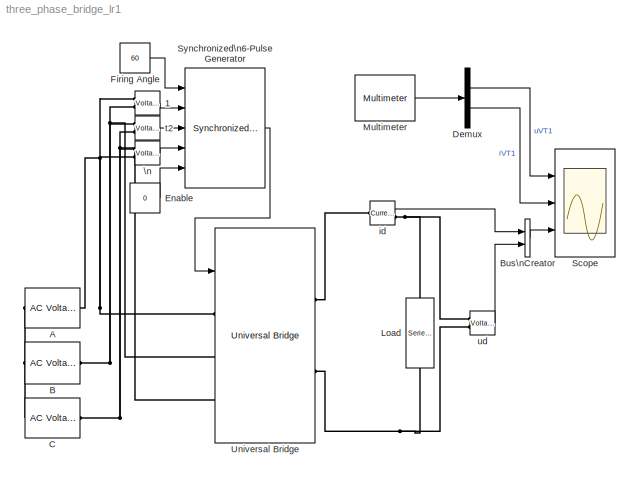
MODEL three_phase_bridge_lr1
KIND model
BLOCK [Reference]   \n  REF=powerlib/Measurements/Voltage Measurement
  OutputType = Complex
  PSBequivalent = 0
  PhasorSimulation = off
  Ports = [0, 1, 0, 0, 0, 2]
  ShowPortLabels = on
  SourceBlock = powerlib/Measurements/Voltage Measurement
  SourceType = Voltage Measurement
BLOCK [Reference] 1  REF=powerlib/Measurements/Voltage Measurement
  OutputType = Complex
  PSBequivalent = 0
  PhasorSimulation = off
  Ports = [0, 1, 0, 0, 0, 2]
  ShowPortLabels = on
  SourceBlock = powerlib/Measurements/Voltage Measurement
  SourceType = Voltage Measurement
BLOCK [Reference] A  REF=powerlib/Electrical\nSources/AC Voltage Source
  Amplitude = 100
  Frequency = 50
  Measurements = None
  Phase = 30
  Ports = [0, 0, 0, 0, 0, 1, 1]
  SampleTime = 0
  ShowPortLabels = on
  SourceBlock = powerlib/Electrical\nSources/AC Voltage Source
  SourceType = AC Voltage Source
BLOCK [Reference] B  REF=powerlib/Electrical\nSources/AC Voltage Source
  Amplitude = 100
  Frequency = 50
  Measurements = None
  Phase = -90
  Ports = [0, 0, 0, 0, 0, 1, 1]
  SampleTime = 0
  ShowPortLabels = on
  SourceBlock = powerlib/Electrical\nSources/AC Voltage Source
  SourceType = AC Voltage Source
BLOCK [BusCreator] Bus\nCreator
  DialogController = Simulink.DDGSource_Bus
  DisplayOption = bar
  Inputs = 2
  Ports = [2, 1]
BLOCK [Reference] C  REF=powerlib/Electrical\nSources/AC Voltage Source
  Amplitude = 100
  Frequency = 50
  Measurements = None
  Phase = -210
  Ports = [0, 0, 0, 0, 0, 1, 1]
  SampleTime = 0
  ShowPortLabels = on
  SourceBlock = powerlib/Electrical\nSources/AC Voltage Source
  SourceType = AC Voltage Source
BLOCK [Demux] Demux
  Outputs = 2
  Ports = [1, 2]
BLOCK [Constant] Enable
  Value = 0
BLOCK [Constant] Firing Angle
  Value = 60
BLOCK [Reference] Load  REF=powerlib/Elements/Series RLC Branch
  Capacitance = inf
  Inductance = 0.02
  LConnTagsString = __new0
  LeftPortType = p1
  Measurements = None
  PhysicalDomain = powersysdomain
  Ports = [0, 0, 0, 0, 0, 1, 1]
  RConnTagsString = __new0
  Resistance = 2
  RightPortType = p1
  SourceBlock = powerlib/Elements/Series RLC Branch
  SourceType = Series RLC Branch
  SubClassName = unknown
BLOCK [Reference] Multimeter  REF=powerlib/Measurements/Multimeter
  AttributesFormatString = \\n
  AxesSetting = [0,0.1,-100,100]
  Display = 0
  Gain = [1 1]
  L = 16
  OutputType = Magnitude
  PSBOutputType = 1
  PSBequivalent = 0
  PhasorSimulation = off
  Ports = [0, 1]
  SavedBlockNames = -11
  ShowPortLabels = on
  SourceBlock = powerlib/Measurements/Multimeter
  SourceType = MultimeterPSB
  Tag = PoWeRsYsTeMmEaSuReMeNt
  sel = [1 11]
  yselected = {'Usw1: Universal Bridge','Isw1: Universal Bridge'};
BLOCK [Scope] Scope
  DataFormat = StructureWithTime
  Decimation = 5
  NumInputPorts = 3
  Ports = [3]
  SampleInput = on
  SampleTime = 1e-4
  TimeRange = 0.05
  YMax = 200~100~200
  YMin = -200~0~-200
BLOCK [Reference] Synchronized\n6-Pulse Generator  REF=powerlib_extras/Control \nBlocks/Synchronized\n6-Pulse Generator
  Double_Pulse = on
  Ports = [5, 1]
  ShowPortLabels = on
  SourceBlock = powerlib_extras/Control \nBlocks/Synchronized\n6-Pulse Generator
  SourceType = Synchronized 6-pulse generator
  freq = 50
  pwidth = 10
BLOCK [Reference] Universal Bridge  REF=powerlib/Power\nElectronics/Universal Bridge
  Arms = 3
  Device = Thyristors
  ForwardVoltage = 0
  ForwardVoltages = [  0  0  ]
  GTOparameters = [ 10e-6 , 20e-6 ]
  IGBTparameters = [ 1e-6 , 2e-6 ]
  Lon = 0
  Measurements = All voltages and currents
  Ports = [1, 0, 0, 0, 0, 3, 2]
  Ron = 1e-3
  ShowPortLabels = on
  SnubberCapacitance = inf
  SnubberResistance = 1e5
  SourceBlock = powerlib/Power\nElectronics/Universal Bridge
  SourceType = Universal Bridge
BLOCK [Reference] id  REF=powerlib/Measurements/Current Measurement
  OutputType = Complex
  PSBequivalent = 0
  PhasorSimulation = off
  Ports = [0, 1, 0, 0, 0, 1, 1]
  ShowPortLabels = on
  SourceBlock = powerlib/Measurements/Current Measurement
  SourceType = Current Measurement
BLOCK [Reference] t2  REF=powerlib/Measurements/Voltage Measurement
  OutputType = Complex
  PSBequivalent = 0
  PhasorSimulation = off
  Ports = [0, 1, 0, 0, 0, 2]
  ShowPortLabels = on
  SourceBlock = powerlib/Measurements/Voltage Measurement
  SourceType = Voltage Measurement
BLOCK [Reference] ud  REF=powerlib/Measurements/Voltage Measurement
  OutputType = Complex
  PSBequivalent = 0
  PhasorSimulation = off
  Ports = [0, 1, 0, 0, 0, 2]
  ShowPortLabels = on
  SourceBlock = powerlib/Measurements/Voltage Measurement
  SourceType = Voltage Measurement
LINE   \n:1 -> Synchronized\n6-Pulse Generator:4
LINE 1:1 -> Synchronized\n6-Pulse Generator:2
LINE Bus\nCreator:1 -> Scope:3
LINE Demux:1 -> Scope:1
LINE Demux:2 -> Scope:2
LINE Enable:1 -> Synchronized\n6-Pulse Generator:5
LINE Firing Angle:1 -> Synchronized\n6-Pulse Generator:1
LINE Multimeter:1 -> Demux:1
LINE Synchronized\n6-Pulse Generator:1 -> Universal Bridge:1
LINE id:1 -> Bus\nCreator:1
LINE t2:1 -> Synchronized\n6-Pulse Generator:3
LINE ud:1 -> Bus\nCreator:2
PNET net1:   \n:LConn1 -- C:RConn1 -- Universal Bridge:LConn3 -- t2:LConn2
PNET net2:   \n:LConn2 -- 1:LConn1 -- A:RConn1 -- Universal Bridge:LConn1
PNET net3: 1:LConn2 -- B:RConn1 -- Universal Bridge:LConn2 -- t2:LConn1
PNET net4: A:LConn1 -- B:LConn1 -- C:LConn1
PNET net5: Load:LConn1 -- id:RConn1 -- ud:LConn1
PNET net6: Load:RConn1 -- Universal Bridge:RConn2 -- ud:LConn2
PLINE Universal Bridge:RConn1 -- id:LConn1
note: PNET lines group multi-terminal physical nets as a canonical sorted terminal list (undirected conserving connections); 2-terminal nets keep the pairwise PLINE form
